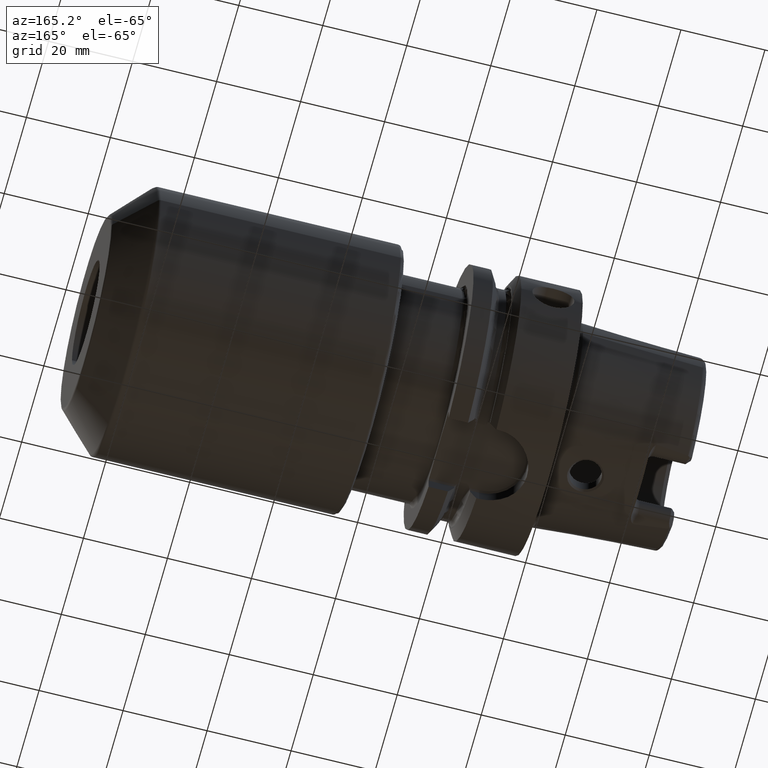
[diagram: clean part render]
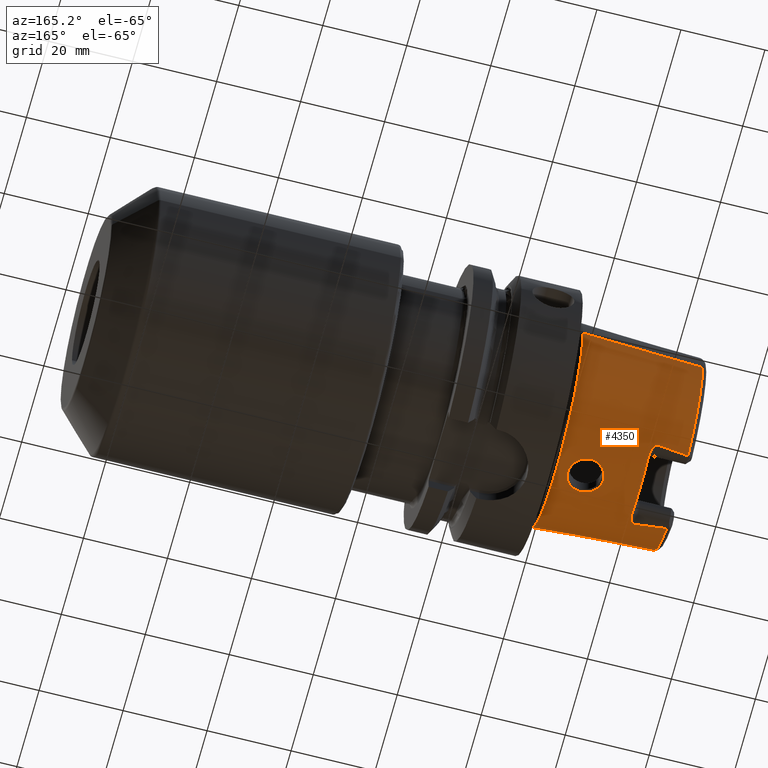
[diagram: same view with one face highlighted and labeled with its STEP entity id]
A machine part, auxiliary view. The second image highlights one B-rep face of the part: STEP entity #4350.
In plain terms, the highlighted conical surface has half-angle 2.868 deg.
Its self-contained STEP definition (entity closure, byte-faithful):
#172=CARTESIAN_POINT('',(-3.086004306431E1,9.562027931336E0,-2.067E1));
#180=CARTESIAN_POINT('',(-3.086004306431E1,0.E0,0.E0));
#181=DIRECTION('',(-1.E0,0.E0,0.E0));
#182=DIRECTION('',(0.E0,1.E0,0.E0));
#183=AXIS2_PLACEMENT_3D('',#180,#181,#182);
#266=CARTESIAN_POINT('',(-3.086004306431E1,0.E0,0.E0));
#267=DIRECTION('',(-1.E0,0.E0,0.E0));
#268=DIRECTION('',(0.E0,-4.198553792210E-1,-9.075910205259E-1));
#269=AXIS2_PLACEMENT_3D('',#266,#267,#268);
#715=CARTESIAN_POINT('',(-2.35E1,-1.040978349090E1,-2.067E1));
#716=CARTESIAN_POINT('',(-2.344355022851E1,-1.041607090076E1,-2.067E1));
#717=CARTESIAN_POINT('',(-2.332956993861E1,-1.041630964332E1,
-2.067627649687E1));
#718=CARTESIAN_POINT('',(-2.315431779142E1,-1.037517685704E1,
-2.070680447798E1));
#719=CARTESIAN_POINT('',(-2.298610382819E1,-1.029332142770E1,
-2.075709446100E1));
#720=CARTESIAN_POINT('',(-2.282168004898E1,-1.016791062235E1,
-2.082809580409E1));
#721=CARTESIAN_POINT('',(-2.266724538325E1,-9.999284585470E0,
-2.091827708343E1));
#722=CARTESIAN_POINT('',(-2.252949651780E1,-9.795860386621E0,
-2.102205159226E1));
#723=CARTESIAN_POINT('',(-2.240609239614E1,-9.556317791147E0,
-2.113897791639E1));
#724=CARTESIAN_POINT('',(-2.233295118151E1,-9.369771312934E0,
-2.122596447282E1));
#725=CARTESIAN_POINT('',(-2.229902715702E1,-9.27E0,-2.127129858661E1));
#732=CARTESIAN_POINT('',(-2.229902715702E1,-9.27E0,-2.127129858661E1));
#733=CARTESIAN_POINT('',(-2.223399395074E1,-9.078735889296E0,
-2.135820522042E1));
#734=CARTESIAN_POINT('',(-2.212138063131E1,-8.709703982970E0,
-2.151897497246E1));
#735=CARTESIAN_POINT('',(-2.202143095510E1,-8.195867731278E0,
-2.172483116732E1));
#736=CARTESIAN_POINT('',(-2.2E1,-7.876905772307E0,-2.184209600703E1));
#737=CARTESIAN_POINT('',(-2.2E1,-7.723914364163E0,-2.189606426911E1));
#744=CARTESIAN_POINT('',(-3.086004306431E1,9.562027931336E0,-2.067E1));
#745=CARTESIAN_POINT('',(-3.006933576531E1,9.656377942908E0,-2.067E1));
#746=CARTESIAN_POINT('',(-2.846987211493E1,9.844931102331E0,-2.067E1));
#747=CARTESIAN_POINT('',(-2.601704943476E1,1.012739619931E1,-2.067E1));
#748=CARTESIAN_POINT('',(-2.434508424921E1,1.031565749353E1,-2.067E1));
#749=CARTESIAN_POINT('',(-2.35E1,1.040978349090E1,-2.067E1));
#751=CARTESIAN_POINT('',(-2.2E1,0.E0,0.E0));
#752=DIRECTION('',(1.E0,0.E0,0.E0));
#753=DIRECTION('',(0.E0,-3.326627708379E-1,-9.430458530201E-1));
#754=AXIS2_PLACEMENT_3D('',#751,#752,#753);
#756=CARTESIAN_POINT('',(-2.35E1,-1.040978349090E1,-2.067E1));
#757=CARTESIAN_POINT('',(-2.434499363207E1,-1.031566758652E1,-2.067E1));
#758=CARTESIAN_POINT('',(-2.601683809497E1,-1.012742018211E1,-2.067E1));
#759=CARTESIAN_POINT('',(-2.846966522954E1,-9.844955281726E0,-2.067E1));
#760=CARTESIAN_POINT('',(-3.006924714753E1,-9.656388517097E0,-2.067E1));
#761=CARTESIAN_POINT('',(-3.086004306431E1,-9.562027931336E0,-2.067E1));
#763=DIRECTION('',(-9.987474205320E-1,5.003588692862E-2,0.E0));
#764=VECTOR('',#763,2.889623789861E1);
#765=CARTESIAN_POINT('',(-2.E0,-2.422042414966E1,0.E0));
#766=LINE('',#765,#764);
#767=CARTESIAN_POINT('',(-2.E0,0.E0,0.E0));
#768=DIRECTION('',(1.E0,0.E0,0.E0));
#769=DIRECTION('',(0.E0,-1.E0,0.E0));
#770=AXIS2_PLACEMENT_3D('',#767,#768,#769);
#772=DIRECTION('',(-9.987474205320E-1,-5.003588692862E-2,0.E0));
#773=VECTOR('',#772,2.889623789861E1);
#774=CARTESIAN_POINT('',(-2.E0,2.422042414966E1,0.E0));
#775=LINE('',#774,#773);
#776=CARTESIAN_POINT('',(-4.750586214018E0,5.673461659763E-9,
-2.408258339423E1));
#777=CARTESIAN_POINT('',(-4.750477437961E0,2.111411076152E-1,
-2.408258884376E1));
#778=CARTESIAN_POINT('',(-4.781495656806E0,6.343409338442E-1,
-2.407562144168E1));
#779=CARTESIAN_POINT('',(-4.930078657106E0,1.283914855647E0,-2.404224907910E1));
#780=CARTESIAN_POINT('',(-5.182634392381E0,1.908800454949E0,-2.398769888200E1));
#781=CARTESIAN_POINT('',(-5.529831450162E0,2.484539069761E0,-2.391697022480E1));
#782=CARTESIAN_POINT('',(-5.960551469368E0,2.995586150016E0,-2.383614077825E1));
#783=CARTESIAN_POINT('',(-6.473793439058E0,3.438507792172E0,-2.374982588457E1));
#784=CARTESIAN_POINT('',(-7.048787066123E0,3.792204015972E0,-2.366626747645E1));
#785=CARTESIAN_POINT('',(-7.671452269175E0,4.050490920343E0,-2.359141310307E1));
#786=CARTESIAN_POINT('',(-8.326498075054E0,4.207389863949E0,-2.353035449331E1));
#787=CARTESIAN_POINT('',(-8.996688113385E0,4.259622037115E0,-2.348674331493E1));
#788=CARTESIAN_POINT('',(-9.664449704733E0,4.206963769363E0,-2.346231724919E1));
#789=CARTESIAN_POINT('',(-1.031524077611E1,4.051442761029E0,-2.345681057565E1));
#790=CARTESIAN_POINT('',(-1.093485325951E1,3.796098039719E0,-2.346839797168E1));
#791=CARTESIAN_POINT('',(-1.150677686976E1,3.447081430360E0,-2.349368587605E1));
#792=CARTESIAN_POINT('',(-1.201610511114E1,3.013688514077E0,-2.352797212386E1));
#793=CARTESIAN_POINT('',(-1.245275273991E1,2.504280742997E0,-2.356616658718E1));
#794=CARTESIAN_POINT('',(-1.280634613041E1,1.927107192660E0,-2.360307496745E1));
#795=CARTESIAN_POINT('',(-1.306351718265E1,1.301776136825E0,-2.363325793045E1));
#796=CARTESIAN_POINT('',(-1.321667495617E1,6.483699009348E-1,
-2.365261938940E1));
#797=CARTESIAN_POINT('',(-1.324953338827E1,2.167159282651E-1,
-2.365680321669E1));
#798=CARTESIAN_POINT('',(-1.324940828071E1,6.149879737228E-9,
-2.365680948441E1));
#800=CARTESIAN_POINT('',(-1.324940828071E1,6.149879737228E-9,
-2.365680948441E1));
#801=CARTESIAN_POINT('',(-1.324953102801E1,-2.137481481882E-1,
-2.365680333493E1));
#802=CARTESIAN_POINT('',(-1.321763433537E1,-6.412975014817E-1,
-2.365274945467E1));
#803=CARTESIAN_POINT('',(-1.306535183772E1,-1.296633810944E0,
-2.363348136753E1));
#804=CARTESIAN_POINT('',(-1.280777805154E1,-1.924231879999E0,
-2.360323471178E1));
#805=CARTESIAN_POINT('',(-1.245640925213E1,-2.498853587660E0,
-2.356653312143E1));
#806=CARTESIAN_POINT('',(-1.202279775894E1,-3.007095564138E0,
-2.352849478770E1));
#807=CARTESIAN_POINT('',(-1.151012912941E1,-3.444950000041E0,
-2.349384632376E1));
#808=CARTESIAN_POINT('',(-1.093833543731E1,-3.794219313343E0,
-2.346852201482E1));
#809=CARTESIAN_POINT('',(-1.031975853695E1,-4.049996047184E0,
-2.345683414568E1));
#810=CARTESIAN_POINT('',(-9.668027880621E0,-4.206485188960E0,
-2.346222186835E1));
#811=CARTESIAN_POINT('',(-8.998732245580E0,-4.259676561364E0,
-2.348662929012E1));
#812=CARTESIAN_POINT('',(-8.327946517995E0,-4.207637743620E0,
-2.353023608986E1));
#813=CARTESIAN_POINT('',(-7.672280726344E0,-4.050816496641E0,
-2.359131552533E1));
#814=CARTESIAN_POINT('',(-7.048298445734E0,-3.792045808672E0,
-2.366632099982E1));
#815=CARTESIAN_POINT('',(-6.472887987830E0,-3.437795786313E0,
-2.374997505426E1));
#816=CARTESIAN_POINT('',(-5.960766318899E0,-2.995689730409E0,
-2.383610614678E1));
#817=CARTESIAN_POINT('',(-5.531187494687E0,-2.486290041474E0,
-2.391671147691E1));
#818=CARTESIAN_POINT('',(-5.183401261358E0,-1.910526594455E0,
-2.398753185570E1));
#819=CARTESIAN_POINT('',(-4.929997199649E0,-1.284003067748E0,
-2.404226458263E1));
#820=CARTESIAN_POINT('',(-4.781340780308E0,-6.332209723674E-1,
-2.407566103624E1));
#821=CARTESIAN_POINT('',(-4.750402434471E0,-2.105981632370E-1,
-2.408259260134E1));
#822=CARTESIAN_POINT('',(-4.750586214018E0,5.673461659763E-9,
-2.408258339423E1));
#832=CARTESIAN_POINT('',(-2.229902715702E1,9.27E0,-2.127129858661E1));
#833=CARTESIAN_POINT('',(-2.233311157770E1,9.370243041714E0,-2.122575012858E1));
#834=CARTESIAN_POINT('',(-2.240658425841E1,9.557497215840E0,-2.113842140416E1));
#835=CARTESIAN_POINT('',(-2.253041527230E1,9.797438074146E0,-2.102126542838E1));
#836=CARTESIAN_POINT('',(-2.266830373788E1,1.000064778809E1,-2.091756656395E1));
#837=CARTESIAN_POINT('',(-2.282373330426E1,1.017005110462E1,-2.082694270310E1));
#838=CARTESIAN_POINT('',(-2.299261366970E1,1.029790438197E1,-2.075446014923E1));
#839=CARTESIAN_POINT('',(-2.316533457542E1,1.037882348161E1,-2.070435505978E1));
#840=CARTESIAN_POINT('',(-2.333269177476E1,1.041609135758E1,-2.067621009348E1));
#841=CARTESIAN_POINT('',(-2.344467268621E1,1.041594588074E1,-2.067E1));
#842=CARTESIAN_POINT('',(-2.35E1,1.040978349090E1,-2.067E1));
#844=CARTESIAN_POINT('',(-2.2E1,7.723914364163E0,-2.189606426911E1));
#845=CARTESIAN_POINT('',(-2.2E1,7.876901135824E0,-2.184209764257E1));
#846=CARTESIAN_POINT('',(-2.202143124879E1,8.195856320393E0,-2.172483505793E1));
#847=CARTESIAN_POINT('',(-2.212136508173E1,8.709641843939E0,-2.151900085185E1));
#848=CARTESIAN_POINT('',(-2.223398514363E1,9.078709987396E0,-2.135821698973E1));
#849=CARTESIAN_POINT('',(-2.229902715702E1,9.27E0,-2.127129858661E1));
#3039=CARTESIAN_POINT('',(-2.E0,2.422042414966E1,0.E0));
#3040=CARTESIAN_POINT('',(-2.E0,-2.422042414966E1,0.E0));
#3041=VERTEX_POINT('',#3039);
#3042=VERTEX_POINT('',#3040);
#3043=CARTESIAN_POINT('',(-3.086004306431E1,2.277457525750E1,0.E0));
#3044=VERTEX_POINT('',#3043);
#3045=CARTESIAN_POINT('',(-3.086004306431E1,-2.277457525750E1,0.E0));
#3046=VERTEX_POINT('',#3045);
#3164=VERTEX_POINT('',#172);
#3166=CARTESIAN_POINT('',(-3.086004306431E1,-9.562027931336E0,-2.067E1));
#3167=VERTEX_POINT('',#3166);
#3170=CARTESIAN_POINT('',(-2.229902715702E1,-9.27E0,-2.127129858661E1));
#3172=VERTEX_POINT('',#3170);
#3173=VERTEX_POINT('',#737);
#3174=VERTEX_POINT('',#844);
#3175=VERTEX_POINT('',#849);
#3186=CARTESIAN_POINT('',(-2.35E1,-1.040978349090E1,-2.067E1));
#3187=VERTEX_POINT('',#3186);
#3188=CARTESIAN_POINT('',(-2.35E1,1.040978349090E1,-2.067E1));
#3189=VERTEX_POINT('',#3188);
#3254=VERTEX_POINT('',#776);
#3255=VERTEX_POINT('',#798);
#4320=CARTESIAN_POINT('',(-1.643002153216E1,0.E0,0.E0));
#4321=DIRECTION('',(1.E0,0.E0,0.E0));
#4322=DIRECTION('',(0.E0,-1.E0,0.E0));
#4323=AXIS2_PLACEMENT_3D('',#4320,#4321,#4322);
#4324=CONICAL_SURFACE('',#4323,2.349749970358E1,2.868042729042E0);
#4326=ORIENTED_EDGE('',*,*,#4325,.T.);
#4328=ORIENTED_EDGE('',*,*,#4327,.F.);
#4330=ORIENTED_EDGE('',*,*,#4329,.F.);
#4332=ORIENTED_EDGE('',*,*,#4331,.F.);
#4333=ORIENTED_EDGE('',*,*,#4310,.F.);
#4334=ORIENTED_EDGE('',*,*,#4299,.F.);
#4335=ORIENTED_EDGE('',*,*,#4286,.T.);
#4336=ORIENTED_EDGE('',*,*,#3689,.T.);
#4337=ORIENTED_EDGE('',*,*,#3547,.F.);
#4339=ORIENTED_EDGE('',*,*,#4338,.T.);
#4340=ORIENTED_EDGE('',*,*,#3543,.T.);
#4341=ORIENTED_EDGE('',*,*,#3661,.T.);
#4342=EDGE_LOOP('',(#4326,#4328,#4330,#4332,#4333,#4334,#4335,#4336,#4337,#4339,
#4340,#4341));
#4343=FACE_OUTER_BOUND('',#4342,.F.);
#4345=ORIENTED_EDGE('',*,*,#4344,.F.);
#4347=ORIENTED_EDGE('',*,*,#4346,.F.);
#4348=EDGE_LOOP('',(#4345,#4347));
#4349=FACE_BOUND('',#4348,.F.);
#4350=ADVANCED_FACE('',(#4343,#4349),#4324,.T.);
#184=CIRCLE('',#183,2.277457525750E1);
#270=CIRCLE('',#269,2.277457525750E1);
#726=B_SPLINE_CURVE_WITH_KNOTS('',3,(#715,#716,#717,#718,#719,#720,#721,#722,
#723,#724,#725),.UNSPECIFIED.,.F.,.F.,(4,1,1,1,1,1,1,1,4),(0.E0,1.25E-1,2.5E-1,
3.75E-1,5.E-1,6.25E-1,7.5E-1,8.75E-1,1.E0),.UNSPECIFIED.);
#738=B_SPLINE_CURVE_WITH_KNOTS('',3,(#732,#733,#734,#735,#736,#737),
.UNSPECIFIED.,.F.,.F.,(4,1,1,4),(0.E0,3.333333333333E-1,6.666666666667E-1,1.E0),
.UNSPECIFIED.);
#750=B_SPLINE_CURVE_WITH_KNOTS('',3,(#744,#745,#746,#747,#748,#749),
.UNSPECIFIED.,.F.,.F.,(4,1,1,4),(0.E0,3.333333333333E-1,6.666666666667E-1,1.E0),
.UNSPECIFIED.);
#755=CIRCLE('',#754,2.321845136054E1);
#762=B_SPLINE_CURVE_WITH_KNOTS('',3,(#756,#757,#758,#759,#760,#761),
.UNSPECIFIED.,.F.,.F.,(4,1,1,4),(0.E0,3.333333333333E-1,6.666666666667E-1,1.E0),
.UNSPECIFIED.);
#771=CIRCLE('',#770,2.422042414966E1);
#799=B_SPLINE_CURVE_WITH_KNOTS('',3,(#776,#777,#778,#779,#780,#781,#782,#783,
#784,#785,#786,#787,#788,#789,#790,#791,#792,#793,#794,#795,#796,#797,#798),
.UNSPECIFIED.,.F.,.F.,(4,1,1,1,1,1,1,1,1,1,1,1,1,1,1,1,1,1,1,1,4),(0.E0,5.E-2,
1.E-1,1.5E-1,2.E-1,2.5E-1,3.E-1,3.5E-1,4.E-1,4.5E-1,5.E-1,5.5E-1,6.E-1,6.5E-1,
7.E-1,7.5E-1,8.E-1,8.5E-1,9.E-1,9.5E-1,1.E0),.UNSPECIFIED.);
#823=B_SPLINE_CURVE_WITH_KNOTS('',3,(#800,#801,#802,#803,#804,#805,#806,#807,
#808,#809,#810,#811,#812,#813,#814,#815,#816,#817,#818,#819,#820,#821,#822),
.UNSPECIFIED.,.F.,.F.,(4,1,1,1,1,1,1,1,1,1,1,1,1,1,1,1,1,1,1,1,4),(0.E0,5.E-2,
1.E-1,1.5E-1,2.E-1,2.5E-1,3.E-1,3.5E-1,4.E-1,4.5E-1,5.E-1,5.5E-1,6.E-1,6.5E-1,
7.E-1,7.5E-1,8.E-1,8.5E-1,9.E-1,9.5E-1,1.E0),.UNSPECIFIED.);
#843=B_SPLINE_CURVE_WITH_KNOTS('',3,(#832,#833,#834,#835,#836,#837,#838,#839,
#840,#841,#842),.UNSPECIFIED.,.F.,.F.,(4,1,1,1,1,1,1,1,4),(0.E0,1.25E-1,2.5E-1,
3.75E-1,5.E-1,6.25E-1,7.5E-1,8.75E-1,1.E0),.UNSPECIFIED.);
#850=B_SPLINE_CURVE_WITH_KNOTS('',3,(#844,#845,#846,#847,#848,#849),
.UNSPECIFIED.,.F.,.F.,(4,1,1,4),(0.E0,3.333333333333E-1,6.666666666667E-1,1.E0),
.UNSPECIFIED.);
#3543=EDGE_CURVE('',#3041,#3044,#775,.T.);
#3547=EDGE_CURVE('',#3042,#3046,#766,.T.);
#3661=EDGE_CURVE('',#3044,#3164,#184,.T.);
#3689=EDGE_CURVE('',#3167,#3046,#270,.T.);
#4286=EDGE_CURVE('',#3187,#3167,#762,.T.);
#4299=EDGE_CURVE('',#3187,#3172,#726,.T.);
#4310=EDGE_CURVE('',#3172,#3173,#738,.T.);
#4325=EDGE_CURVE('',#3164,#3189,#750,.T.);
#4327=EDGE_CURVE('',#3175,#3189,#843,.T.);
#4329=EDGE_CURVE('',#3174,#3175,#850,.T.);
#4331=EDGE_CURVE('',#3173,#3174,#755,.T.);
#4338=EDGE_CURVE('',#3042,#3041,#771,.T.);
#4344=EDGE_CURVE('',#3254,#3255,#799,.T.);
#4346=EDGE_CURVE('',#3255,#3254,#823,.T.);